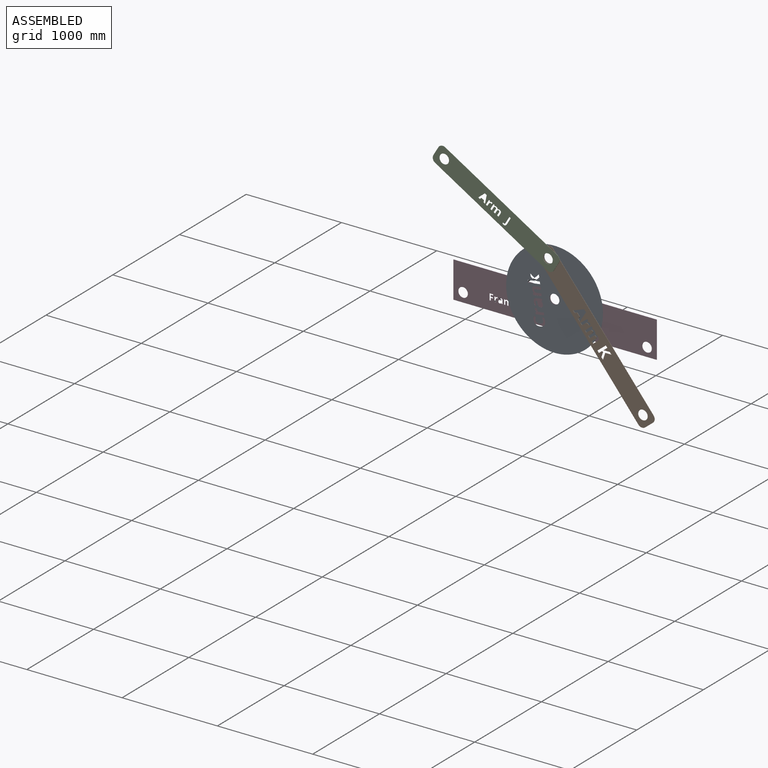
[diagram: assembled view]
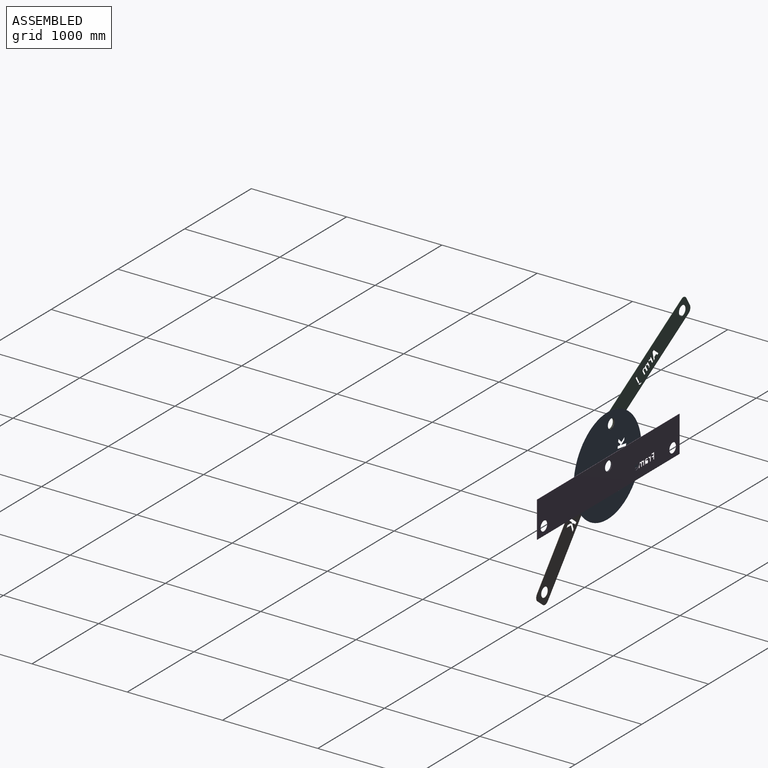
[diagram: assembled view, second angle]
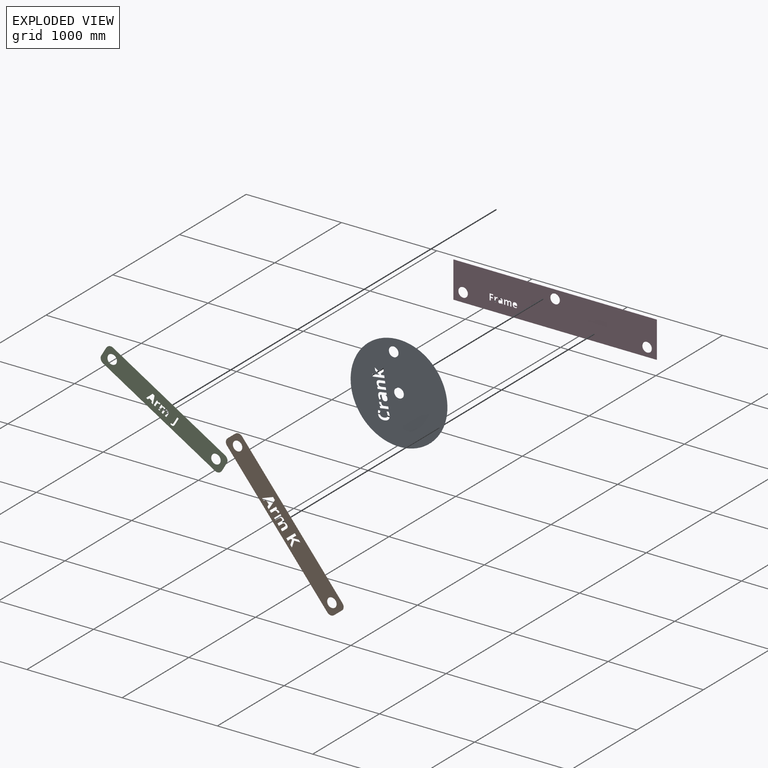
[diagram: exploded view]
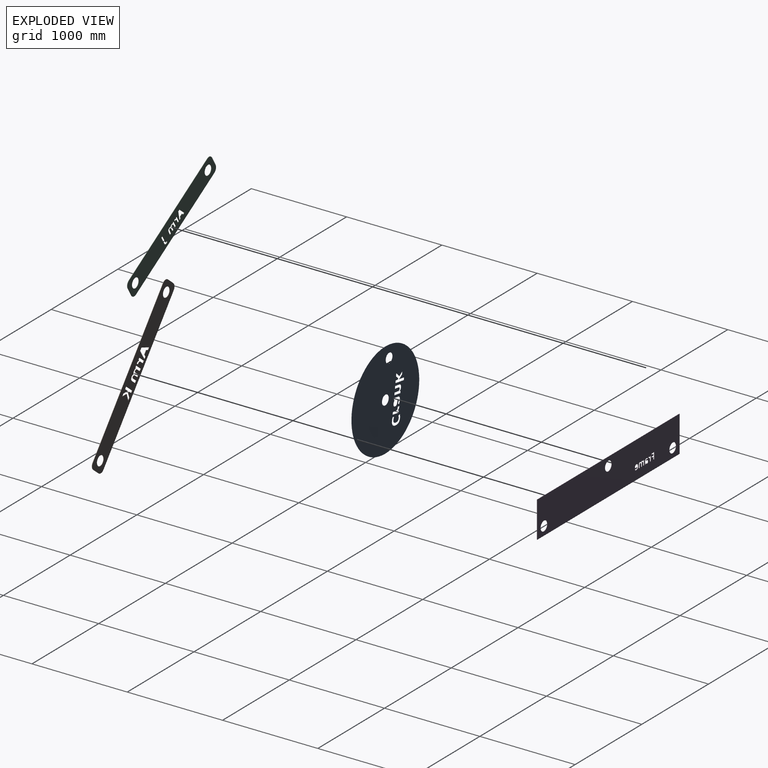
[diagram: exploded view, second angle]
ASSEMBLY  parts=4 mates=3
PART A: 83 faces, bbox 1016x0.3x1016 mm
  f0: extruded ~13.48x5.55mm, area 4.6mm2, adj f1,f73,f81,f82
  f1: extruded ~13.3x2.37mm, area 4.3mm2, adj f0,f2,f81,f82
  f2: extruded ~22.13x10.74mm, area 8.1mm2, adj f1,f3,f81,f82
  f3: extruded ~29.92x7.84mm, area 10mm2, adj f2,f4,f81,f82
  f4: extruded ~39.93x29.97mm, area 18.1mm2, adj f3,f5,f81,f82
  f5: extruded ~30.44x6.27mm, area 9.9mm2, adj f4,f6,f81,f82
  f6: plane 21.22x0.32mm, normal (-1,0,0), area 6.7mm2, adj f5,f7,f81,f82
  f7: extruded ~32.82x6.14mm, area 10.7mm2, adj f6,f8,f81,f82
  f8: extruded ~39.85x15.81mm, area 14.1mm2, adj f7,f9,f81,f82
  f9: extruded ~45.36x13.8mm, area 15.4mm2, adj f8,f10,f81,f82
  f10: extruded ~32.64x6.78mm, area 10.7mm2, adj f9,f11,f81,f82
  f11: extruded ~21.47x19.48mm, area 9.3mm2, adj f10,f12,f81,f82
  f12: extruded ~29.76x7.46mm, area 9.9mm2, adj f11,f13,f81,f82
  f13: extruded ~34.94x8.39mm, area 11.5mm2, adj f12,f73,f81,f82
  f14: extruded ~12.37x11.49mm, area 5.4mm2, adj f15,f74,f81,f82
  f15: extruded ~15.72x4.69mm, area 5.3mm2, adj f14,f16,f81,f82
  f16: extruded ~8.41x0.73mm, area 2.7mm2, adj f15,f17,f81,f82
  f17: plane 23.34x1.88mm, normal (-1,0,0.08), area 7.4mm2, adj f16,f18,f81,f82
  f18: extruded ~7.34x0.81mm, area 2.4mm2, adj f17,f19,f81,f82
  f19: extruded ~18.58x6.13mm, area 6.4mm2, adj f18,f20,f81,f82
  f20: extruded ~17.16x6.66mm, area 6mm2, adj f19,f21,f81,f82
  f21: plane 46.46x0.32mm, normal (-1,0,0), area 14.8mm2, adj f20,f22,f81,f82
  f22: plane 24.9x0.32mm, normal (0,0,1), area 7.9mm2, adj f21,f23,f81,f82
  f23: plane 91.3x0.32mm, normal (1,0,0), area 29mm2, adj f22,f24,f81,f82
  f24: plane 18.87x0.32mm, normal (0,0,-1), area 6mm2, adj f23,f25,f81,f82
  f25: plane 15.37x3.68mm, normal (-0.97,0,-0.23), area 5mm2, adj f24,f74,f81,f82
  f26: plane 60.83x0.32mm, normal (-1,0,0), area 19.3mm2, adj f27,f75,f81,f82
  f27: plane 17.38x0.32mm, normal (0,0,1), area 5.5mm2, adj f26,f28,f81,f82
  f28: plane 12.41x4.83mm, normal (0.93,0,0.36), area 4.2mm2, adj f27,f29,f81,f82
  f29: plane 0.65x0.32mm, normal (0,0,1), area 0.2mm2, adj f28,f30,f81,f82
  f30: extruded ~12.94x10.99mm, area 5.4mm2, adj f29,f31,f81,f82
  f31: extruded ~17.35x3.07mm, area 5.6mm2, adj f30,f32,f81,f82
  f32: extruded ~20.7x7.53mm, area 7.2mm2, adj f31,f33,f81,f82
  f33: extruded ~21.4x7.55mm, area 7.4mm2, adj f32,f34,f81,f82
  f34: extruded ~21.43x10.17mm, area 7.9mm2, adj f33,f35,f81,f82
  f35: extruded ~30.65x7.63mm, area 10.2mm2, adj f34,f36,f81,f82
  f36: plane 15.86x0.5mm, normal (0.03,0,-1), area 5mm2, adj f35,f37,f81,f82
  f37: plane 4x0.32mm, normal (1,0,0), area 1.3mm2, adj f36,f38,f81,f82
  f38: extruded ~14.22x13.88mm, area 7.2mm2, adj f37,f39,f81,f82
  f39: extruded ~25.74x6.61mm, area 8.5mm2, adj f38,f40,f81,f82
  f40: plane 16.83x8.23mm, normal (0.9,0,0.44), area 5.9mm2, adj f39,f41,f81,f82
  f41: extruded ~34.94x8.26mm, area 11.5mm2, adj f40,f42,f81,f82
  f42: extruded ~28.17x8.01mm, area 9.5mm2, adj f41,f75,f81,f82
  f43: extruded ~24.86x8.24mm, area 8.5mm2, adj f44,f76,f81,f82
  f44: plane 59.53x0.32mm, normal (-1,0,0), area 18.9mm2, adj f43,f45,f81,f82
  f45: plane 24.9x0.32mm, normal (0,0,1), area 7.9mm2, adj f44,f46,f81,f82
  f46: plane 53.33x0.32mm, normal (1,0,0), area 16.9mm2, adj f45,f47,f81,f82
  f47: extruded ~14.82x3.51mm, area 4.9mm2, adj f46,f48,f81,f82
  f48: extruded ~11.2x4.94mm, area 4mm2, adj f47,f49,f81,f82
  f49: extruded ~15.1x6.98mm, area 5.5mm2, adj f48,f50,f81,f82
  f50: extruded ~23.15x4.65mm, area 7.6mm2, adj f49,f51,f81,f82
  f51: plane 42.96x0.32mm, normal (-1,0,0), area 13.6mm2, adj f50,f52,f81,f82
  f52: plane 24.9x0.32mm, normal (0,0,1), area 7.9mm2, adj f51,f53,f81,f82
  f53: plane 91.3x0.32mm, normal (1,0,0), area 29mm2, adj f52,f54,f81,f82
  f54: plane 19.02x0.32mm, normal (0,0,-1), area 6mm2, adj f53,f55,f81,f82
  f55: plane 11.68x3.35mm, normal (-0.96,0,-0.28), area 3.9mm2, adj f54,f56,f81,f82
  f56: plane 1.39x0.32mm, normal (0,0,-1), area 0.4mm2, adj f55,f57,f81,f82
  f57: extruded ~11.49x10mm, area 4.9mm2, adj f56,f58,f81,f82
  f58: extruded ~16.61x3.38mm, area 5.4mm2, adj f57,f76,f81,f82
  f59: plane 20.75x1.31mm, normal (-1,0,0.06), area 6.6mm2, adj f60,f77,f81,f82
  f60: plane 0.34x0.32mm, normal (0,0,-1), area 0.1mm2, adj f59,f61,f81,f82
  f61: plane 13.88x10.84mm, normal (0.79,0,-0.62), area 5.6mm2, adj f60,f62,f81,f82
  f62: plane 27.78x25.56mm, normal (0.74,0,-0.68), area 12mm2, adj f61,f63,f81,f82
  f63: plane 28.09x0.32mm, normal (0,0,-1), area 8.9mm2, adj f62,f64,f81,f82
  f64: plane 39.62x36.24mm, normal (-0.74,0,0.68), area 17mm2, adj f63,f65,f81,f82
  f65: plane 51.69x38.47mm, normal (-0.8,0,-0.6), area 20.5mm2, adj f64,f66,f81,f82
  f66: plane 28.75x0.32mm, normal (0,0,1), area 9.1mm2, adj f65,f67,f81,f82
  f67: plane 37x26.29mm, normal (0.82,0,0.58), area 14.4mm2, adj f66,f68,f81,f82
  f68: plane 10.71x8.57mm, normal (-0.62,0,0.78), area 4.4mm2, adj f67,f69,f81,f82
  f69: plane 28.43x0.32mm, normal (-1,0,0), area 9mm2, adj f68,f70,f81,f82
  f70: plane 24.9x0.32mm, normal (0,0,1), area 7.9mm2, adj f69,f71,f81,f82
  f71: plane 127.08x0.32mm, normal (1,0,0), area 40.3mm2, adj f70,f72,f81,f82
  f72: plane 24.9x0.32mm, normal (0,0,-1), area 7.9mm2, adj f71,f77,f81,f82
  f73: plane 20.59x8.15mm, normal (-0.93,0,0.37), area 7mm2, adj f0,f13,f81,f82
  f74: plane 1.2x0.32mm, normal (0,0,-1), area 0.4mm2, adj f14,f25,f81,f82
  f75: extruded ~24.34x9.8mm, area 8.6mm2, adj f26,f42,f81,f82
  f76: extruded ~24.19x8.61mm, area 8.4mm2, adj f43,f58,f81,f82
  f77: plane 56.68x0.32mm, normal (-1,0,0), area 18mm2, adj f59,f72,f81,f82
  f78: cylinder r=50.8mm len=101.6mm, axis (0,1,0), area 101.3mm2, adj f81,f82
  f79: cylinder r=50.8mm len=101.6mm, axis (0,1,0), area 101.3mm2, adj f81,f82
  f80: cylinder r=508mm len=1016mm, axis (0,1,0), area 1013.4mm2, adj f81,f82
  f81: plane 1016x1016mm, normal (0,-1,0), area 769860.7mm2, adj f0,f1,f2,f3,f4,f5,f6,f7
  f82: plane 1016x1016mm, normal (0,1,0), area 769860.7mm2, adj f0,f1,f2,f3,f4,f5,f6,f7
PART B: 74 faces, bbox 1775.5x3.2x203.2 mm
  f0: plane 51.53x40.62mm, normal (-0.79,0,0.62), area 208.3mm2, adj f1,f71,f72,f73
  f1: plane 64.91x40.93mm, normal (-0.85,0,-0.53), area 243.6mm2, adj f0,f2,f72,f73
  f2: plane 28.03x3.18mm, normal (0,0,1), area 89mm2, adj f1,f3,f72,f73
  f3: plane 49.06x30.5mm, normal (0.85,0,0.53), area 183.4mm2, adj f2,f4,f72,f73
  f4: plane 10.42x7.49mm, normal (-0.58,0,0.81), area 40.8mm2, adj f3,f5,f72,f73
  f5: plane 41.56x3.18mm, normal (-1,0,0), area 132mm2, adj f4,f6,f72,f73
  f6: plane 24.69x3.18mm, normal (0,0,1), area 78.4mm2, adj f5,f7,f72,f73
  f7: plane 116.44x3.18mm, normal (1,0,0), area 369.7mm2, adj f6,f8,f72,f73
  f8: plane 24.69x3.18mm, normal (0,0,-1), area 78.4mm2, adj f7,f9,f72,f73
  f9: plane 53.29x3.18mm, normal (-1,0,0), area 169.2mm2, adj f8,f10,f72,f73
  f10: plane 13.71x9.71mm, normal (0.82,0,-0.58), area 53.3mm2, adj f9,f11,f72,f73
  f11: plane 39.58x31.55mm, normal (0.78,0,-0.62), area 160.7mm2, adj f10,f71,f72,f73
  f12: extruded ~20.23x4.42mm, area 66.7mm2, adj f13,f65,f72,f73
  f13: plane 44.67x3.18mm, normal (-1,0,0), area 141.8mm2, adj f12,f14,f72,f73
  f14: plane 24.29x3.18mm, normal (0,0,1), area 77.1mm2, adj f13,f15,f72,f73
  f15: plane 52.01x3.18mm, normal (1,0,0), area 165.1mm2, adj f14,f16,f72,f73
  f16: extruded ~14.45x3.22mm, area 47.7mm2, adj f15,f17,f72,f73
  f17: extruded ~10.16x4.82mm, area 37.3mm2, adj f16,f18,f72,f73
  f18: extruded ~13.54x6.86mm, area 50.6mm2, adj f17,f19,f72,f73
  f19: extruded ~22.53x4.22mm, area 73.6mm2, adj f18,f20,f72,f73
  f20: plane 41.9x3.18mm, normal (-1,0,0), area 133mm2, adj f19,f21,f72,f73
  f21: plane 24.29x3.18mm, normal (0,0,1), area 77.1mm2, adj f20,f22,f72,f73
  f22: plane 89.04x3.18mm, normal (1,0,0), area 282.7mm2, adj f21,f23,f72,f73
  f23: plane 18.55x3.18mm, normal (0,0,-1), area 58.9mm2, adj f22,f24,f72,f73
  f24: plane 11.39x3.26mm, normal (-0.96,0,-0.28), area 37.6mm2, adj f23,f25,f72,f73
  f25: plane 3.18x1.35mm, normal (0,0,-1), area 4.3mm2, adj f24,f26,f72,f73
  f26: extruded ~10.36x9.59mm, area 45.5mm2, adj f25,f27,f72,f73
  f27: extruded ~15.53x3.45mm, area 51mm2, adj f26,f28,f72,f73
  f28: extruded ~27.09x13.05mm, area 100.6mm2, adj f27,f29,f72,f73
  f29: plane 3.18x2.14mm, normal (0,0,-1), area 6.8mm2, adj f28,f30,f72,f73
  f30: extruded ~10.55x9.63mm, area 46mm2, adj f29,f31,f72,f73
  f31: extruded ~15.72x3.42mm, area 51.5mm2, adj f30,f32,f72,f73
  f32: extruded ~22.9x7.76mm, area 78.8mm2, adj f31,f33,f72,f73
  f33: extruded ~24.89x7.76mm, area 84.9mm2, adj f32,f34,f72,f73
  f34: plane 58.05x3.18mm, normal (-1,0,0), area 184.3mm2, adj f33,f35,f72,f73
  f35: plane 24.36x3.18mm, normal (0,0,1), area 77.4mm2, adj f34,f36,f72,f73
  f36: plane 52.01x3.18mm, normal (1,0,0), area 165.1mm2, adj f35,f37,f72,f73
  f37: extruded ~14.45x3.22mm, area 47.7mm2, adj f36,f38,f72,f73
  f38: extruded ~10.16x4.82mm, area 37.3mm2, adj f37,f65,f72,f73
  f39: extruded ~12.07x11.2mm, area 52.8mm2, adj f40,f66,f72,f73
  f40: extruded ~15.33x4.57mm, area 51.5mm2, adj f39,f41,f72,f73
  f41: extruded ~8.21x3.18mm, area 26.2mm2, adj f40,f42,f72,f73
  f42: plane 22.76x3.18mm, normal (-1,0,0.08), area 72.5mm2, adj f41,f43,f72,f73
  f43: extruded ~7.16x3.18mm, area 22.9mm2, adj f42,f44,f72,f73
  f44: extruded ~18.12x5.98mm, area 62mm2, adj f43,f45,f72,f73
  f45: extruded ~16.73x6.5mm, area 58.7mm2, adj f44,f46,f72,f73
  f46: plane 45.31x3.18mm, normal (-1,0,0), area 143.9mm2, adj f45,f47,f72,f73
  f47: plane 24.29x3.18mm, normal (0,0,1), area 77.1mm2, adj f46,f48,f72,f73
  f48: plane 89.04x3.18mm, normal (1,0,0), area 282.7mm2, adj f47,f49,f72,f73
  f49: plane 18.4x3.18mm, normal (0,0,-1), area 58.4mm2, adj f48,f50,f72,f73
  f50: plane 14.98x3.59mm, normal (-0.97,0,-0.23), area 48.9mm2, adj f49,f66,f72,f73
  f51: plane 116.92x41.26mm, normal (-0.94,0,-0.33), area 393.7mm2, adj f52,f67,f72,f73
  f52: plane 26.61x3.18mm, normal (0,0,1), area 84.5mm2, adj f51,f53,f72,f73
  f53: plane 27.73x8.44mm, normal (0.96,0,0.29), area 92mm2, adj f52,f54,f72,f73
  f54: plane 42.46x3.18mm, normal (0,0,1), area 134.8mm2, adj f53,f55,f72,f73
  f55: plane 27.73x8.44mm, normal (-0.96,0,0.29), area 92mm2, adj f54,f56,f72,f73
  f56: plane 26.61x3.18mm, normal (0,0,1), area 84.5mm2, adj f55,f57,f72,f73
  f57: plane 116.92x41.11mm, normal (0.94,0,-0.33), area 393.5mm2, adj f56,f67,f72,f73
  f58: cylinder r=50.8mm len=50.8mm, axis (0,1,0), area 253.4mm2, adj f59,f68,f72,f73
  f59: plane 1673.86x3.18mm, normal (0,0,-1), area 5314.5mm2, adj f58,f60,f72,f73
  f60: cylinder r=50.8mm len=50.8mm, axis (0,1,0), area 253.4mm2, adj f59,f61,f72,f73
  f61: plane 101.6x3.18mm, normal (1,0,0), area 322.6mm2, adj f60,f62,f72,f73
  f62: cylinder r=50.8mm len=50.8mm, axis (0,1,0), area 253.4mm2, adj f61,f63,f72,f73
  f63: plane 1673.86x3.18mm, normal (0,0,1), area 5314.5mm2, adj f62,f64,f72,f73
  f64: cylinder r=50.8mm len=50.8mm, axis (0,1,0), area 253.4mm2, adj f63,f68,f72,f73
  f65: extruded ~13.34x6.37mm, area 49mm2, adj f12,f38,f72,f73
  f66: plane 3.18x1.17mm, normal (0,0,-1), area 3.7mm2, adj f39,f50,f72,f73
  f67: plane 30.17x3.18mm, normal (0,0,-1), area 95.8mm2, adj f51,f57,f72,f73
  f68: plane 101.6x3.18mm, normal (-1,0,0), area 322.6mm2, adj f58,f64,f72,f73
  f69: cylinder r=50.8mm len=101.6mm, axis (0,1,0), area 1013.4mm2, adj f72,f73
  f70: cylinder r=50.8mm len=101.6mm, axis (0,1,0), area 1013.4mm2, adj f72,f73
  f71: plane 27.4x3.18mm, normal (0,0,-1), area 87mm2, adj f0,f11,f72,f73
  f72: plane 1775.46x203.2mm, normal (0,-1,0), area 318833.9mm2, adj f0,f1,f2,f3,f4,f5,f6,f7
  f73: plane 1775.46x203.2mm, normal (0,1,0), area 318833.9mm2, adj f0,f1,f2,f3,f4,f5,f6,f7
PART C: 71 faces, bbox 1473.2x3.2x203.2 mm
  f0: extruded ~22.95x6.88mm, area 77.7mm2, adj f1,f68,f69,f70
  f1: extruded ~20.36x7.89mm, area 71.6mm2, adj f0,f2,f69,f70
  f2: extruded ~10.77x3.18mm, area 34.5mm2, adj f1,f3,f69,f70
  f3: plane 15.17x3.18mm, normal (1,0,0), area 48.2mm2, adj f2,f4,f69,f70
  f4: extruded ~8.58x3.18mm, area 27.6mm2, adj f3,f5,f69,f70
  f5: extruded ~8.59x3.74mm, area 31mm2, adj f4,f6,f69,f70
  f6: extruded ~11.68x3.18mm, area 38.5mm2, adj f5,f7,f69,f70
  f7: plane 80.58x3.18mm, normal (1,0,0), area 255.9mm2, adj f6,f8,f69,f70
  f8: plane 18.24x3.18mm, normal (0,0,-1), area 57.9mm2, adj f7,f68,f69,f70
  f9: extruded ~14.95x3.27mm, area 49.3mm2, adj f10,f62,f69,f70
  f10: plane 33x3.18mm, normal (-1,0,0), area 104.8mm2, adj f9,f11,f69,f70
  f11: plane 17.94x3.18mm, normal (0,0,1), area 57mm2, adj f10,f12,f69,f70
  f12: plane 38.42x3.18mm, normal (1,0,0), area 122mm2, adj f11,f13,f69,f70
  f13: extruded ~10.67x3.18mm, area 35.2mm2, adj f12,f14,f69,f70
  f14: extruded ~7.5x3.56mm, area 27.5mm2, adj f13,f15,f69,f70
  f15: extruded ~10.01x5.06mm, area 37.4mm2, adj f14,f16,f69,f70
  f16: extruded ~16.64x3.18mm, area 54.4mm2, adj f15,f17,f69,f70
  f17: plane 30.95x3.18mm, normal (-1,0,0), area 98.3mm2, adj f16,f18,f69,f70
  f18: plane 17.94x3.18mm, normal (0,0,1), area 57mm2, adj f17,f19,f69,f70
  f19: plane 65.77x3.18mm, normal (1,0,0), area 208.8mm2, adj f18,f20,f69,f70
  f20: plane 13.7x3.18mm, normal (0,0,-1), area 43.5mm2, adj f19,f21,f69,f70
  f21: plane 8.41x3.18mm, normal (-0.96,0,-0.28), area 27.8mm2, adj f20,f22,f69,f70
  f22: plane 3.18x1mm, normal (0,0,-1), area 3.2mm2, adj f21,f23,f69,f70
  f23: extruded ~7.65x7.09mm, area 33.6mm2, adj f22,f24,f69,f70
  f24: extruded ~11.47x3.18mm, area 37.7mm2, adj f23,f25,f69,f70
  f25: extruded ~20.01x9.64mm, area 74.3mm2, adj f24,f26,f69,f70
  f26: plane 3.18x1.58mm, normal (0,0,-1), area 5mm2, adj f25,f27,f69,f70
  f27: extruded ~7.79x7.12mm, area 34mm2, adj f26,f28,f69,f70
  f28: extruded ~11.61x3.18mm, area 38.1mm2, adj f27,f29,f69,f70
  f29: extruded ~16.91x5.73mm, area 58.2mm2, adj f28,f30,f69,f70
  f30: extruded ~18.38x5.73mm, area 62.7mm2, adj f29,f31,f69,f70
  f31: plane 42.88x3.18mm, normal (-1,0,0), area 136.1mm2, adj f30,f32,f69,f70
  f32: plane 18x3.18mm, normal (0,0,1), area 57.1mm2, adj f31,f33,f69,f70
  f33: plane 38.42x3.18mm, normal (1,0,0), area 122mm2, adj f32,f34,f69,f70
  f34: extruded ~10.67x3.18mm, area 35.2mm2, adj f33,f35,f69,f70
  f35: extruded ~7.5x3.56mm, area 27.5mm2, adj f34,f62,f69,f70
  f36: extruded ~8.91x8.27mm, area 39mm2, adj f37,f63,f69,f70
  f37: extruded ~11.32x3.38mm, area 38.1mm2, adj f36,f38,f69,f70
  f38: extruded ~6.06x3.18mm, area 19.4mm2, adj f37,f39,f69,f70
  f39: plane 16.81x3.18mm, normal (-1,0,0.08), area 53.5mm2, adj f38,f40,f69,f70
  f40: extruded ~5.29x3.18mm, area 16.9mm2, adj f39,f41,f69,f70
  f41: extruded ~13.38x4.41mm, area 45.8mm2, adj f40,f42,f69,f70
  f42: extruded ~12.36x4.8mm, area 43.4mm2, adj f41,f43,f69,f70
  f43: plane 33.47x3.18mm, normal (-1,0,0), area 106.3mm2, adj f42,f44,f69,f70
  f44: plane 17.94x3.18mm, normal (0,0,1), area 57mm2, adj f43,f45,f69,f70
  f45: plane 65.77x3.18mm, normal (1,0,0), area 208.8mm2, adj f44,f46,f69,f70
  f46: plane 13.59x3.18mm, normal (0,0,-1), area 43.2mm2, adj f45,f47,f69,f70
  f47: plane 11.07x3.18mm, normal (-0.97,0,-0.23), area 36.1mm2, adj f46,f63,f69,f70
  f48: plane 86.36x30.48mm, normal (-0.94,0,-0.33), area 290.8mm2, adj f49,f64,f69,f70
  f49: plane 19.65x3.18mm, normal (0,0,1), area 62.4mm2, adj f48,f50,f69,f70
  f50: plane 20.48x6.23mm, normal (0.96,0,0.29), area 68mm2, adj f49,f51,f69,f70
  f51: plane 31.36x3.18mm, normal (0,0,1), area 99.6mm2, adj f50,f52,f69,f70
  f52: plane 20.48x6.23mm, normal (-0.96,0,0.29), area 68mm2, adj f51,f53,f69,f70
  f53: plane 19.65x3.18mm, normal (0,0,1), area 62.4mm2, adj f52,f54,f69,f70
  f54: plane 86.36x30.36mm, normal (0.94,0,-0.33), area 290.7mm2, adj f53,f64,f69,f70
  f55: cylinder r=50.8mm len=50.8mm, axis (0,1,0), area 253.4mm2, adj f56,f65,f69,f70
  f56: plane 1371.6x3.18mm, normal (0,0,-1), area 4354.8mm2, adj f55,f57,f69,f70
  f57: cylinder r=50.8mm len=50.8mm, axis (0,1,0), area 253.4mm2, adj f56,f58,f69,f70
  f58: plane 101.6x3.18mm, normal (1,0,0), area 322.6mm2, adj f57,f59,f69,f70
  f59: cylinder r=50.8mm len=50.8mm, axis (0,1,0), area 253.4mm2, adj f58,f60,f69,f70
  f60: plane 1371.6x3.18mm, normal (0,0,1), area 4354.8mm2, adj f59,f61,f69,f70
  f61: cylinder r=50.8mm len=50.8mm, axis (0,1,0), area 253.4mm2, adj f60,f65,f69,f70
  f62: extruded ~9.85x4.71mm, area 36.2mm2, adj f9,f35,f69,f70
  f63: plane 3.18x0.87mm, normal (0,0,-1), area 2.7mm2, adj f36,f47,f69,f70
  f64: plane 22.29x3.18mm, normal (0,0,-1), area 70.8mm2, adj f48,f54,f69,f70
  f65: plane 101.6x3.18mm, normal (-1,0,0), area 322.6mm2, adj f55,f61,f69,f70
  f66: cylinder r=50.8mm len=101.6mm, axis (0,1,0), area 1013.4mm2, adj f69,f70
  f67: cylinder r=50.8mm len=101.6mm, axis (0,1,0), area 1013.4mm2, adj f69,f70
  f68: plane 80.47x3.18mm, normal (-1,0,0), area 255.5mm2, adj f0,f8,f69,f70
  f69: plane 1473.2x203.2mm, normal (0,-1,0), area 269275.4mm2, adj f0,f1,f2,f3,f4,f5,f6,f7
  f70: plane 1473.2x203.2mm, normal (0,1,0), area 269275.4mm2, adj f0,f1,f2,f3,f4,f5,f6,f7
PART D: 93 faces, bbox 2133.6x3.2x381 mm
  f0: extruded ~7.94x3.18mm, area 26.8mm2, adj f1,f90,f91,f92
  f1: extruded ~10.32x3.18mm, area 33mm2, adj f0,f2,f91,f92
  f2: extruded ~19.61x6.93mm, area 67.8mm2, adj f1,f3,f91,f92
  f3: extruded ~19.62x7.07mm, area 68.1mm2, adj f2,f4,f91,f92
  f4: extruded ~20.19x6.53mm, area 69mm2, adj f3,f5,f91,f92
  f5: extruded ~18.06x7.13mm, area 63.6mm2, adj f4,f6,f91,f92
  f6: extruded ~17.14x6.27mm, area 59.6mm2, adj f5,f7,f91,f92
  f7: extruded ~17.34x6.14mm, area 59.9mm2, adj f6,f8,f91,f92
  f8: plane 6.89x3.18mm, normal (-1,0,0), area 21.9mm2, adj f7,f9,f91,f92
  f9: plane 33.51x3.18mm, normal (0,0,1), area 106.4mm2, adj f8,f10,f91,f92
  f10: extruded ~9.43x3.59mm, area 32.8mm2, adj f9,f11,f91,f92
  f11: extruded ~9.39x3.39mm, area 32.6mm2, adj f10,f12,f91,f92
  f12: extruded ~8.88x3.18mm, area 28.4mm2, adj f11,f13,f91,f92
  f13: extruded ~8.73x3.18mm, area 29.5mm2, adj f12,f90,f91,f92
  f14: plane 381x3.18mm, normal (-1,0,0), area 1209.7mm2, adj f15,f82,f91,f92
  f15: plane 2133.6x3.18mm, normal (0,0,-1), area 6774.2mm2, adj f14,f16,f91,f92
  f16: plane 381x3.18mm, normal (1,0,0), area 1209.7mm2, adj f15,f82,f91,f92
  f17: plane 23.06x3.18mm, normal (0,0,1), area 73.2mm2, adj f18,f83,f91,f92
  f18: plane 26.87x3.18mm, normal (-1,0,0), area 85.3mm2, adj f17,f19,f91,f92
  f19: plane 14.18x3.18mm, normal (0,0,1), area 45mm2, adj f18,f20,f91,f92
  f20: plane 67.97x3.18mm, normal (1,0,0), area 215.8mm2, adj f19,f21,f91,f92
  f21: plane 38.96x3.18mm, normal (0,0,-1), area 123.7mm2, adj f20,f22,f91,f92
  f22: plane 11.81x3.18mm, normal (-1,0,0), area 37.5mm2, adj f21,f23,f91,f92
  f23: plane 24.78x3.18mm, normal (0,0,1), area 78.7mm2, adj f22,f24,f91,f92
  f24: plane 17.52x3.18mm, normal (-1,0,0), area 55.6mm2, adj f23,f25,f91,f92
  f25: plane 23.06x3.18mm, normal (0,0,-1), area 73.2mm2, adj f24,f83,f91,f92
  f26: extruded ~7.04x6.54mm, area 30.8mm2, adj f27,f84,f91,f92
  f27: extruded ~8.95x3.18mm, area 30.1mm2, adj f26,f28,f91,f92
  f28: extruded ~4.79x3.18mm, area 15.3mm2, adj f27,f29,f91,f92
  f29: plane 13.28x3.18mm, normal (-1,0,0.08), area 42.3mm2, adj f28,f30,f91,f92
  f30: extruded ~4.18x3.18mm, area 13.4mm2, adj f29,f31,f91,f92
  f31: extruded ~10.58x3.49mm, area 36.2mm2, adj f30,f32,f91,f92
  f32: extruded ~9.77x3.79mm, area 34.3mm2, adj f31,f33,f91,f92
  f33: plane 26.45x3.18mm, normal (-1,0,0), area 84mm2, adj f32,f34,f91,f92
  f34: plane 14.18x3.18mm, normal (0,0,1), area 45mm2, adj f33,f35,f91,f92
  f35: plane 51.98x3.18mm, normal (1,0,0), area 165mm2, adj f34,f36,f91,f92
  f36: plane 10.74x3.18mm, normal (0,0,-1), area 34.1mm2, adj f35,f37,f91,f92
  f37: plane 8.75x3.18mm, normal (-0.97,0,-0.23), area 28.6mm2, adj f36,f84,f91,f92
  f38: plane 34.63x3.18mm, normal (-1,0,0), area 110mm2, adj f39,f85,f91,f92
  f39: plane 9.89x3.18mm, normal (0,0,1), area 31.4mm2, adj f38,f40,f91,f92
  f40: plane 7.07x3.18mm, normal (0.93,0,0.36), area 24.1mm2, adj f39,f41,f91,f92
  f41: plane 3.18x0.37mm, normal (0,0,1), area 1.2mm2, adj f40,f42,f91,f92
  f42: extruded ~7.36x6.26mm, area 31mm2, adj f41,f43,f91,f92
  f43: extruded ~9.88x3.18mm, area 32.1mm2, adj f42,f44,f91,f92
  f44: extruded ~11.78x4.28mm, area 40.9mm2, adj f43,f45,f91,f92
  f45: extruded ~12.18x4.3mm, area 42.1mm2, adj f44,f46,f91,f92
  f46: extruded ~12.2x5.79mm, area 44.8mm2, adj f45,f47,f91,f92
  f47: extruded ~17.45x4.34mm, area 57.8mm2, adj f46,f48,f91,f92
  f48: plane 9.03x3.18mm, normal (0.03,0,-1), area 28.7mm2, adj f47,f49,f91,f92
  f49: plane 3.18x2.28mm, normal (1,0,0), area 7.2mm2, adj f48,f50,f91,f92
  f50: extruded ~8.09x7.9mm, area 41.2mm2, adj f49,f51,f91,f92
  f51: extruded ~14.65x3.76mm, area 48.4mm2, adj f50,f52,f91,f92
  f52: plane 9.58x4.69mm, normal (0.9,0,0.44), area 33.9mm2, adj f51,f53,f91,f92
  f53: extruded ~19.89x4.7mm, area 65.5mm2, adj f52,f54,f91,f92
  f54: extruded ~16.04x4.56mm, area 54mm2, adj f53,f85,f91,f92
  f55: extruded ~11.81x3.18mm, area 38.9mm2, adj f56,f86,f91,f92
  f56: plane 26.08x3.18mm, normal (-1,0,0), area 82.8mm2, adj f55,f57,f91,f92
  f57: plane 14.18x3.18mm, normal (0,0,1), area 45mm2, adj f56,f58,f91,f92
  f58: plane 30.36x3.18mm, normal (1,0,0), area 96.4mm2, adj f57,f59,f91,f92
  f59: extruded ~8.43x3.18mm, area 27.8mm2, adj f58,f60,f91,f92
  f60: extruded ~5.93x3.18mm, area 21.8mm2, adj f59,f61,f91,f92
  f61: extruded ~7.91x4mm, area 29.5mm2, adj f60,f62,f91,f92
  f62: extruded ~13.15x3.18mm, area 43mm2, adj f61,f63,f91,f92
  f63: plane 24.46x3.18mm, normal (-1,0,0), area 77.6mm2, adj f62,f64,f91,f92
  f64: plane 14.18x3.18mm, normal (0,0,1), area 45mm2, adj f63,f65,f91,f92
  f65: plane 51.98x3.18mm, normal (1,0,0), area 165mm2, adj f64,f66,f91,f92
  f66: plane 10.83x3.18mm, normal (0,0,-1), area 34.4mm2, adj f65,f67,f91,f92
  f67: plane 6.65x3.18mm, normal (-0.96,0,-0.28), area 22mm2, adj f66,f68,f91,f92
  f68: plane 3.18x0.79mm, normal (0,0,-1), area 2.5mm2, adj f67,f69,f91,f92
  f69: extruded ~6.05x5.6mm, area 26.5mm2, adj f68,f70,f91,f92
  f70: extruded ~9.07x3.18mm, area 29.8mm2, adj f69,f71,f91,f92
  f71: extruded ~15.81x7.62mm, area 58.7mm2, adj f70,f72,f91,f92
  f72: plane 3.18x1.25mm, normal (0,0,-1), area 4mm2, adj f71,f73,f91,f92
  f73: extruded ~6.16x5.62mm, area 26.9mm2, adj f72,f74,f91,f92
  f74: extruded ~9.18x3.18mm, area 30.1mm2, adj f73,f75,f91,f92
  f75: extruded ~13.37x4.53mm, area 46mm2, adj f74,f76,f91,f92
  f76: extruded ~14.53x4.53mm, area 49.6mm2, adj f75,f77,f91,f92
  f77: plane 33.89x3.18mm, normal (-1,0,0), area 107.6mm2, adj f76,f78,f91,f92
  f78: plane 14.22x3.18mm, normal (0,0,1), area 45.2mm2, adj f77,f79,f91,f92
  f79: plane 30.36x3.18mm, normal (1,0,0), area 96.4mm2, adj f78,f80,f91,f92
  f80: extruded ~8.43x3.18mm, area 27.8mm2, adj f79,f81,f91,f92
  f81: extruded ~5.93x3.18mm, area 21.8mm2, adj f80,f86,f91,f92
  f82: plane 2133.6x3.18mm, normal (0,0,1), area 6774.2mm2, adj f14,f16,f91,f92
  f83: plane 11.77x3.18mm, normal (-1,0,0), area 37.4mm2, adj f17,f25,f91,f92
  f84: plane 3.18x0.68mm, normal (0,0,-1), area 2.2mm2, adj f26,f37,f91,f92
  f85: extruded ~13.86x5.58mm, area 49.1mm2, adj f38,f54,f91,f92
  f86: extruded ~7.79x3.72mm, area 28.6mm2, adj f55,f81,f91,f92
  f87: cylinder r=50.8mm len=101.6mm, axis (0,1,0), area 1013.4mm2, adj f91,f92
  f88: cylinder r=50.8mm len=101.6mm, axis (0,1,0), area 1013.4mm2, adj f91,f92
  f89: cylinder r=50.8mm len=101.6mm, axis (0,1,0), area 1013.4mm2, adj f91,f92
  f90: plane 10.98x3.18mm, normal (-1,0,0), area 34.9mm2, adj f0,f13,f91,f92
  f91: plane 2133.6x381mm, normal (0,-1,0), area 779851.3mm2, adj f0,f1,f2,f3,f4,f5,f6,f7
  f92: plane 2133.6x381mm, normal (0,1,0), area 779851.3mm2, adj f0,f1,f2,f3,f4,f5,f6,f7
PLACE A rot(axis=(0,-1,0),98.5deg) t=(7759.52,-9.52,-6530.05)mm
PLACE B rot(axis=(0,1,0),51deg) t=(5955.54,-16.19,533.2)mm
PLACE C rot(axis=(0,1,0),31deg) t=(6054.92,-25.72,-152.23)mm
PLACE D at identity fixed
MATE revolute B.f69 <-> A.f79  axis (0,1,0) through (6587.94,-16.19,-1347.92)mm
MATE revolute B.f69 <-> C.f67  axis (0,-1,0) through (6587.94,-19.37,-1347.92)mm
MATE revolute A.f78 <-> D.f89  axis (0,1,0) through (6644.13,-9.52,-1724.75)mm
